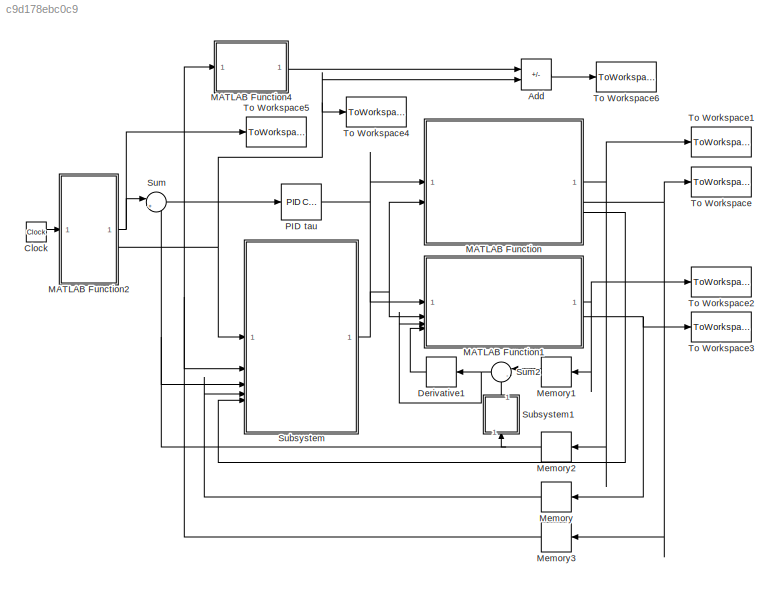
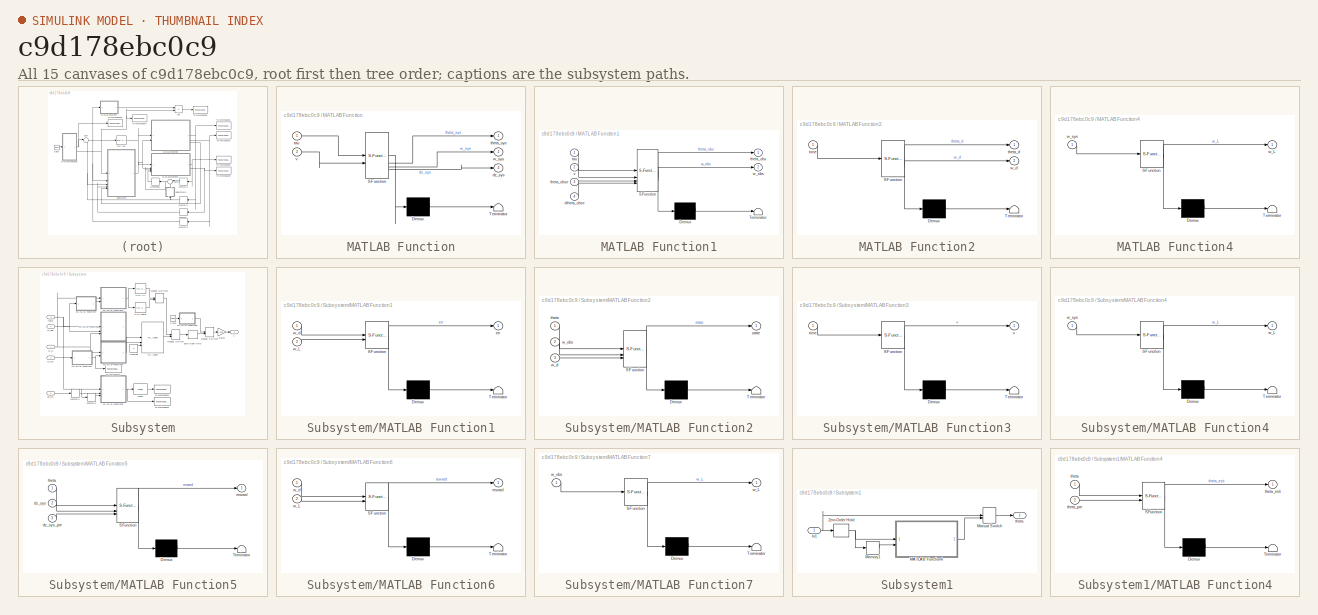
[diagram: thumbnail index - all 15 canvases of the model, root first then tree order]
MODEL slx_c9d178ebc0c9
KIND model
CONFIG AbsTol = auto
CONFIG EnableMultiTasking = off
CONFIG FixedStep = 5e-5
CONFIG MaxStep = auto
CONFIG MinStep = auto
CONFIG RelTol = 1e-3
CONFIG SampleTimeConstraint = Unconstrained
CONFIG SolverName = FixedStepAuto
CONFIG StartTime = 0.0
CONFIG StopTime = 10.0
BLOCK [Sum] Add
  IconShape = rectangular
  Inputs = -+
BLOCK [Clock] Clock
BLOCK [Derivative] Derivative1
  NameLocation = top
BLOCK [SubSystem] MATLAB Function
  ErrorFcn = Stateflow.Translate.translate
  PermitHierarchicalResolution = ExplicitOnly
  SFBlockType = MATLAB Function
  TreatAsAtomicUnit = on
BLOCK [Demux] MATLAB Function/ Demux 
  Outputs = 1
BLOCK [S-Function] MATLAB Function/ SFunction 
  EnableBusSupport = on
  FunctionName = sf_sfun
  PortCounts = [2 4]
  SFcnIsStateOwnerBlock = off
  SFunctionDeploymentMode = off
  Tag = Stateflow S-Function 2
BLOCK [Terminator] MATLAB Function/ Terminator 
BLOCK [Outport] MATLAB Function/dz_sys
  Port = 3
BLOCK [Inport] MATLAB Function/tau
BLOCK [Outport] MATLAB Function/theta_sys
  VectorParamsAs1DForOutWhenUnconnected = off
BLOCK [Inport] MATLAB Function/v
  Port = 2
BLOCK [Outport] MATLAB Function/w_sys
  Port = 2
  VectorParamsAs1DForOutWhenUnconnected = off
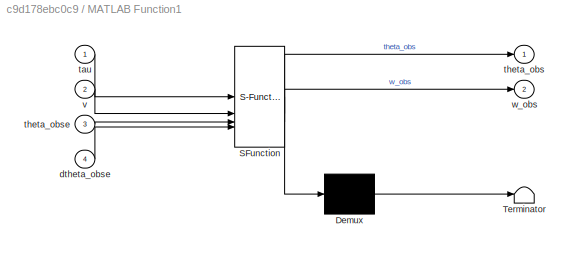
BLOCK [SubSystem] MATLAB Function1
  ErrorFcn = Stateflow.Translate.translate
  PermitHierarchicalResolution = ExplicitOnly
  SFBlockType = MATLAB Function
  TreatAsAtomicUnit = on
BLOCK [Demux] MATLAB Function1/ Demux 
  Outputs = 1
BLOCK [S-Function] MATLAB Function1/ SFunction 
  EnableBusSupport = on
  FunctionName = sf_sfun
  PortCounts = [4 3]
  SFcnIsStateOwnerBlock = off
  SFunctionDeploymentMode = off
  Tag = Stateflow S-Function 1
BLOCK [Terminator] MATLAB Function1/ Terminator 
BLOCK [Inport] MATLAB Function1/dtheta_obse
  Port = 4
BLOCK [Inport] MATLAB Function1/tau
BLOCK [Outport] MATLAB Function1/theta_obs
  VectorParamsAs1DForOutWhenUnconnected = off
BLOCK [Inport] MATLAB Function1/theta_obse
  Port = 3
BLOCK [Inport] MATLAB Function1/v
  Port = 2
BLOCK [Outport] MATLAB Function1/w_obs
  Port = 2
  VectorParamsAs1DForOutWhenUnconnected = off
BLOCK [SubSystem] MATLAB Function2
  ErrorFcn = Stateflow.Translate.translate
  PermitHierarchicalResolution = ExplicitOnly
  SFBlockType = MATLAB Function
  TreatAsAtomicUnit = on
BLOCK [Demux] MATLAB Function2/ Demux 
  Outputs = 1
BLOCK [S-Function] MATLAB Function2/ SFunction 
  EnableBusSupport = on
  FunctionName = sf_sfun
  PortCounts = [1 3]
  SFcnIsStateOwnerBlock = off
  SFunctionDeploymentMode = off
  Tag = Stateflow S-Function 3
BLOCK [Terminator] MATLAB Function2/ Terminator 
BLOCK [Outport] MATLAB Function2/theta_d
  VectorParamsAs1DForOutWhenUnconnected = off
BLOCK [Inport] MATLAB Function2/time
BLOCK [Outport] MATLAB Function2/w_d
  Port = 2
  VectorParamsAs1DForOutWhenUnconnected = off
BLOCK [SubSystem] MATLAB Function4
  ErrorFcn = Stateflow.Translate.translate
  PermitHierarchicalResolution = ExplicitOnly
  SFBlockType = MATLAB Function
  TreatAsAtomicUnit = on
BLOCK [Demux] MATLAB Function4/ Demux 
  Outputs = 1
BLOCK [S-Function] MATLAB Function4/ SFunction 
  EnableBusSupport = on
  FunctionName = sf_sfun
  PortCounts = [1 2]
  SFcnIsStateOwnerBlock = off
  SFunctionDeploymentMode = off
  Tag = Stateflow S-Function 12
BLOCK [Terminator] MATLAB Function4/ Terminator 
BLOCK [Outport] MATLAB Function4/w_L
  VectorParamsAs1DForOutWhenUnconnected = off
BLOCK [Inport] MATLAB Function4/w_sys
BLOCK [Memory] Memory
BLOCK [Memory] Memory1
BLOCK [Memory] Memory2
BLOCK [Memory] Memory3
BLOCK [Reference] PID tau  REF=slpidlib/PID Controller
  SourceBlock = slpidlib/PID Controller
  SourceType = PID 1dof
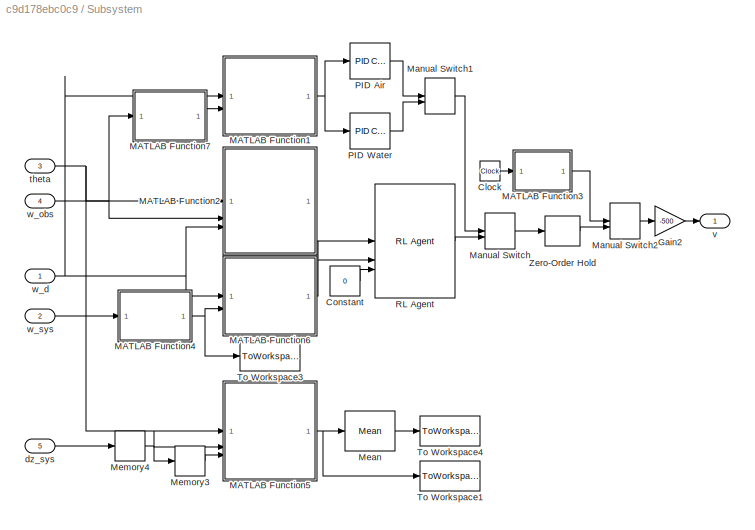
BLOCK [SubSystem] Subsystem
BLOCK [Clock] Subsystem/Clock
BLOCK [Constant] Subsystem/Constant
  Value = 0
BLOCK [Gain] Subsystem/Gain2
  Gain = -500
BLOCK [SubSystem] Subsystem/MATLAB Function1
  ErrorFcn = Stateflow.Translate.translate
  PermitHierarchicalResolution = ExplicitOnly
  SFBlockType = MATLAB Function
  TreatAsAtomicUnit = on
BLOCK [Demux] Subsystem/MATLAB Function1/ Demux 
  Outputs = 1
BLOCK [S-Function] Subsystem/MATLAB Function1/ SFunction 
  EnableBusSupport = on
  FunctionName = sf_sfun
  PortCounts = [2 2]
  SFcnIsStateOwnerBlock = off
  SFunctionDeploymentMode = off
  Tag = Stateflow S-Function 5
BLOCK [Terminator] Subsystem/MATLAB Function1/ Terminator 
BLOCK [Outport] Subsystem/MATLAB Function1/err
  VectorParamsAs1DForOutWhenUnconnected = off
BLOCK [Inport] Subsystem/MATLAB Function1/w_L
  Port = 2
BLOCK [Inport] Subsystem/MATLAB Function1/w_d
BLOCK [SubSystem] Subsystem/MATLAB Function2
  ErrorFcn = Stateflow.Translate.translate
  PermitHierarchicalResolution = ExplicitOnly
  SFBlockType = MATLAB Function
  TreatAsAtomicUnit = on
BLOCK [Demux] Subsystem/MATLAB Function2/ Demux 
  Outputs = 1
BLOCK [S-Function] Subsystem/MATLAB Function2/ SFunction 
  EnableBusSupport = on
  FunctionName = sf_sfun
  PortCounts = [3 2]
  SFcnIsStateOwnerBlock = off
  SFunctionDeploymentMode = off
  Tag = Stateflow S-Function 9
BLOCK [Terminator] Subsystem/MATLAB Function2/ Terminator 
BLOCK [Outport] Subsystem/MATLAB Function2/state
  VectorParamsAs1DForOutWhenUnconnected = off
BLOCK [Inport] Subsystem/MATLAB Function2/theta
BLOCK [Inport] Subsystem/MATLAB Function2/w_d
  Port = 3
BLOCK [Inport] Subsystem/MATLAB Function2/w_obs
  Port = 2
BLOCK [SubSystem] Subsystem/MATLAB Function3
  ErrorFcn = Stateflow.Translate.translate
  PermitHierarchicalResolution = ExplicitOnly
  SFBlockType = MATLAB Function
  TreatAsAtomicUnit = on
BLOCK [Demux] Subsystem/MATLAB Function3/ Demux 
  Outputs = 1
BLOCK [S-Function] Subsystem/MATLAB Function3/ SFunction 
  EnableBusSupport = on
  FunctionName = sf_sfun
  PortCounts = [1 2]
  SFcnIsStateOwnerBlock = off
  SFunctionDeploymentMode = off
  Tag = Stateflow S-Function 4
BLOCK [Terminator] Subsystem/MATLAB Function3/ Terminator 
BLOCK [Inport] Subsystem/MATLAB Function3/time
BLOCK [Outport] Subsystem/MATLAB Function3/v
  VectorParamsAs1DForOutWhenUnconnected = off
BLOCK [SubSystem] Subsystem/MATLAB Function4
  ErrorFcn = Stateflow.Translate.translate
  PermitHierarchicalResolution = ExplicitOnly
  SFBlockType = MATLAB Function
  TreatAsAtomicUnit = on
BLOCK [Demux] Subsystem/MATLAB Function4/ Demux 
  Outputs = 1
BLOCK [S-Function] Subsystem/MATLAB Function4/ SFunction 
  EnableBusSupport = on
  FunctionName = sf_sfun
  PortCounts = [1 2]
  SFcnIsStateOwnerBlock = off
  SFunctionDeploymentMode = off
  Tag = Stateflow S-Function 11
BLOCK [Terminator] Subsystem/MATLAB Function4/ Terminator 
BLOCK [Outport] Subsystem/MATLAB Function4/w_L
  VectorParamsAs1DForOutWhenUnconnected = off
BLOCK [Inport] Subsystem/MATLAB Function4/w_sys
BLOCK [SubSystem] Subsystem/MATLAB Function5
  ErrorFcn = Stateflow.Translate.translate
  PermitHierarchicalResolution = ExplicitOnly
  SFBlockType = MATLAB Function
  TreatAsAtomicUnit = on
BLOCK [Demux] Subsystem/MATLAB Function5/ Demux 
  Outputs = 1
BLOCK [S-Function] Subsystem/MATLAB Function5/ SFunction 
  EnableBusSupport = on
  FunctionName = sf_sfun
  PortCounts = [3 2]
  SFcnIsStateOwnerBlock = off
  SFunctionDeploymentMode = off
  Tag = Stateflow S-Function 6
BLOCK [Terminator] Subsystem/MATLAB Function5/ Terminator 
BLOCK [Inport] Subsystem/MATLAB Function5/dz_sys
  Port = 2
BLOCK [Inport] Subsystem/MATLAB Function5/dz_sys_pre
  Port = 3
BLOCK [Outport] Subsystem/MATLAB Function5/reward
  VectorParamsAs1DForOutWhenUnconnected = off
BLOCK [Inport] Subsystem/MATLAB Function5/theta
BLOCK [SubSystem] Subsystem/MATLAB Function6
  ErrorFcn = Stateflow.Translate.translate
  PermitHierarchicalResolution = ExplicitOnly
  SFBlockType = MATLAB Function
  TreatAsAtomicUnit = on
BLOCK [Demux] Subsystem/MATLAB Function6/ Demux 
  Outputs = 1
BLOCK [S-Function] Subsystem/MATLAB Function6/ SFunction 
  EnableBusSupport = on
  FunctionName = sf_sfun
  PortCounts = [2 2]
  SFcnIsStateOwnerBlock = off
  SFunctionDeploymentMode = off
  Tag = Stateflow S-Function 7
BLOCK [Terminator] Subsystem/MATLAB Function6/ Terminator 
BLOCK [Outport] Subsystem/MATLAB Function6/reward
  VectorParamsAs1DForOutWhenUnconnected = off
BLOCK [Inport] Subsystem/MATLAB Function6/w_L
  Port = 2
BLOCK [Inport] Subsystem/MATLAB Function6/w_d
BLOCK [SubSystem] Subsystem/MATLAB Function7
  ErrorFcn = Stateflow.Translate.translate
  PermitHierarchicalResolution = ExplicitOnly
  SFBlockType = MATLAB Function
  TreatAsAtomicUnit = on
BLOCK [Demux] Subsystem/MATLAB Function7/ Demux 
  Outputs = 1
BLOCK [S-Function] Subsystem/MATLAB Function7/ SFunction 
  EnableBusSupport = on
  FunctionName = sf_sfun
  PortCounts = [1 2]
  SFcnIsStateOwnerBlock = off
  SFunctionDeploymentMode = off
  Tag = Stateflow S-Function 10
BLOCK [Terminator] Subsystem/MATLAB Function7/ Terminator 
BLOCK [Outport] Subsystem/MATLAB Function7/w_L
  VectorParamsAs1DForOutWhenUnconnected = off
BLOCK [Inport] Subsystem/MATLAB Function7/w_obs
BLOCK [ManualSwitch] Subsystem/Manual Switch
  CurrentSetting = 0
BLOCK [ManualSwitch] Subsystem/Manual Switch1
  CurrentSetting = 0
BLOCK [ManualSwitch] Subsystem/Manual Switch2
  CurrentSetting = 0
BLOCK [Reference] Subsystem/Mean  REF=spsMeanLib/Mean
  LibrarySourceBlock = sps_lib/Sensors and Measurements/Mean
  SourceBlock = spsMeanLib/Mean
  SourceType = Mean
BLOCK [Memory] Subsystem/Memory3
  NameLocation = top
BLOCK [Memory] Subsystem/Memory4
  NameLocation = top
BLOCK [Reference] Subsystem/PID Air  REF=slpidlib/PID Controller
  SourceBlock = slpidlib/PID Controller
  SourceType = PID 1dof
BLOCK [Reference] Subsystem/PID Water  REF=slpidlib/PID Controller
  SourceBlock = slpidlib/PID Controller
  SourceType = PID 1dof
BLOCK [Reference] Subsystem/RL Agent  REF=rllib/RL Agent
  SourceBlock = rllib/RL Agent
  SourceType = RL Agent
BLOCK [ToWorkspace] Subsystem/To Workspace1
  FixptAsFi = on
  MaxDataPoints = inf
  SampleTime = -1
  VariableName = thrust
BLOCK [ToWorkspace] Subsystem/To Workspace3
  FixptAsFi = on
  MaxDataPoints = inf
  SampleTime = -1
  VariableName = w_L
BLOCK [ToWorkspace] Subsystem/To Workspace4
  FixptAsFi = on
  MaxDataPoints = inf
  SampleTime = -1
  VariableName = reward
BLOCK [ZeroOrderHold] Subsystem/Zero-Order Hold
  SampleTime = 20e-3
BLOCK [Inport] Subsystem/dz_sys
  Port = 5
BLOCK [Inport] Subsystem/theta
  Port = 3
BLOCK [Outport] Subsystem/v
  VectorParamsAs1DForOutWhenUnconnected = off
BLOCK [Inport] Subsystem/w_d
BLOCK [Inport] Subsystem/w_obs
  Port = 4
BLOCK [Inport] Subsystem/w_sys
  Port = 2
BLOCK [SubSystem] Subsystem1
BLOCK [Inport] Subsystem1/In1
BLOCK [SubSystem] Subsystem1/MATLAB Function4
  ErrorFcn = Stateflow.Translate.translate
  PermitHierarchicalResolution = ExplicitOnly
  SFBlockType = MATLAB Function
  TreatAsAtomicUnit = on
BLOCK [Demux] Subsystem1/MATLAB Function4/ Demux 
  Outputs = 1
BLOCK [S-Function] Subsystem1/MATLAB Function4/ SFunction 
  EnableBusSupport = on
  FunctionName = sf_sfun
  PortCounts = [2 2]
  SFcnIsStateOwnerBlock = off
  SFunctionDeploymentMode = off
  Tag = Stateflow S-Function 8
BLOCK [Terminator] Subsystem1/MATLAB Function4/ Terminator 
BLOCK [Inport] Subsystem1/MATLAB Function4/theta
BLOCK [Outport] Subsystem1/MATLAB Function4/theta_esti
  VectorParamsAs1DForOutWhenUnconnected = off
BLOCK [Inport] Subsystem1/MATLAB Function4/theta_pre
  Port = 2
BLOCK [ManualSwitch] Subsystem1/Manual Switch
BLOCK [Memory] Subsystem1/Memory1
  NameLocation = top
BLOCK [ZeroOrderHold] Subsystem1/Zero-Order Hold
  SampleTime = 30e-3
BLOCK [Outport] Subsystem1/theta
BLOCK [Sum] Sum
  Inputs = |+-
BLOCK [Sum] Sum2
  Inputs = |-+
  NameLocation = top
BLOCK [ToWorkspace] To Workspace
  FixptAsFi = on
  MaxDataPoints = inf
  SampleTime = -1
  VariableName = w_sys
BLOCK [ToWorkspace] To Workspace1
  FixptAsFi = on
  MaxDataPoints = inf
  SampleTime = -1
  VariableName = theta_sys
BLOCK [ToWorkspace] To Workspace2
  FixptAsFi = on
  MaxDataPoints = inf
  SampleTime = -1
  VariableName = theta_obs
BLOCK [ToWorkspace] To Workspace3
  FixptAsFi = on
  MaxDataPoints = inf
  SampleTime = -1
  VariableName = w_obs
BLOCK [ToWorkspace] To Workspace4
  FixptAsFi = on
  MaxDataPoints = inf
  SampleTime = -1
  VariableName = w_d
BLOCK [ToWorkspace] To Workspace5
  FixptAsFi = on
  MaxDataPoints = inf
  SampleTime = -1
  VariableName = theta_d
BLOCK [ToWorkspace] To Workspace6
  FixptAsFi = on
  MaxDataPoints = inf
  SampleTime = -1
  VariableName = w_e
LINE Add:1 -> To Workspace6:1
LINE Clock:1 -> MATLAB Function2:1
LINE Derivative1:1 -> MATLAB Function1:4
NET MATLAB Function1:1 -> Memory1:1, To Workspace2:1
NET MATLAB Function1:2 -> Memory:1, To Workspace3:1
NET MATLAB Function2:1 -> Sum:1, To Workspace5:1
NET MATLAB Function2:2 -> Add:2, Subsystem:1, To Workspace4:1
LINE MATLAB Function4:1 -> Add:1
NET MATLAB Function:1 -> Memory2:1, To Workspace1:1
NET MATLAB Function:2 -> Memory3:1, To Workspace:1
LINE MATLAB Function:3 -> Subsystem:5
LINE Memory1:1 -> Sum2:1
NET Memory2:1 -> Subsystem1:1, Subsystem:3, Sum:2
NET Memory3:1 -> MATLAB Function4:1, Subsystem:2
LINE Memory:1 -> Subsystem:4
NET PID tau:1 -> MATLAB Function1:1, MATLAB Function:1
LINE Subsystem/Clock:1 -> Subsystem/MATLAB Function3:1
LINE Subsystem/Constant:1 -> Subsystem/RL Agent:3
LINE Subsystem/Gain2:1 -> Subsystem/v:1
NET Subsystem/MATLAB Function1:1 -> Subsystem/PID Air:1, Subsystem/PID Water:1
LINE Subsystem/MATLAB Function2:1 -> Subsystem/RL Agent:1
LINE Subsystem/MATLAB Function3:1 -> Subsystem/Manual Switch2:1
NET Subsystem/MATLAB Function4:1 -> Subsystem/MATLAB Function6:2, Subsystem/To Workspace3:1
NET Subsystem/MATLAB Function5:1 -> Subsystem/Mean:1, Subsystem/To Workspace1:1
LINE Subsystem/MATLAB Function6:1 -> Subsystem/RL Agent:2
LINE Subsystem/MATLAB Function7:1 -> Subsystem/MATLAB Function1:2
LINE Subsystem/Manual Switch1:1 -> Subsystem/Manual Switch:1
LINE Subsystem/Manual Switch2:1 -> Subsystem/Gain2:1
LINE Subsystem/Manual Switch:1 -> Subsystem/Zero-Order Hold:1
LINE Subsystem/Mean:1 -> Subsystem/To Workspace4:1
LINE Subsystem/Memory3:1 -> Subsystem/MATLAB Function5:3
NET Subsystem/Memory4:1 -> Subsystem/MATLAB Function5:2, Subsystem/Memory3:1
LINE Subsystem/PID Air:1 -> Subsystem/Manual Switch1:1
LINE Subsystem/PID Water:1 -> Subsystem/Manual Switch1:2
LINE Subsystem/RL Agent:1 -> Subsystem/Manual Switch:2
LINE Subsystem/Zero-Order Hold:1 -> Subsystem/Manual Switch2:2
LINE Subsystem/dz_sys:1 -> Subsystem/Memory4:1
NET Subsystem/theta:1 -> Subsystem/MATLAB Function2:1, Subsystem/MATLAB Function5:1
NET Subsystem/w_d:1 -> Subsystem/MATLAB Function1:1, Subsystem/MATLAB Function2:3, Subsystem/MATLAB Function6:1
NET Subsystem/w_obs:1 -> Subsystem/MATLAB Function2:2, Subsystem/MATLAB Function7:1
LINE Subsystem/w_sys:1 -> Subsystem/MATLAB Function4:1
NET Subsystem1/In1:1 -> Subsystem1/Manual Switch:1, Subsystem1/Zero-Order Hold:1
LINE Subsystem1/MATLAB Function4:1 -> Subsystem1/Manual Switch:2
LINE Subsystem1/Manual Switch:1 -> Subsystem1/theta:1
LINE Subsystem1/Memory1:1 -> Subsystem1/MATLAB Function4:2
NET Subsystem1/Zero-Order Hold:1 -> Subsystem1/MATLAB Function4:1, Subsystem1/Memory1:1
LINE Subsystem1:1 -> Sum2:2
NET Subsystem:1 -> MATLAB Function1:2, MATLAB Function:2
NET Sum2:1 -> Derivative1:1, MATLAB Function1:3
LINE Sum:1 -> PID tau:1
note: NET lines group one-source signal fan-out (src -> all destinations, sorted); 1:1 wires keep LINE
CHART Subsystem/MATLAB Function7 states=1 transitions=1
  STATE_LABEL 'eML_blk_kernel()'
  STATE_LABEL 'SCRIPT:\nfunction w_L = get_w_L(w_obs)\n    w_L = w_obs(end);\nend'
CHART Subsystem/MATLAB Function4 states=1 transitions=1
  STATE_LABEL 'eML_blk_kernel()'
  STATE_LABEL 'SCRIPT:\nfunction w_L = get_w_L(w_sys)\n    w_L = w_sys(end);\nend'
CHART MATLAB Function4 states=1 transitions=1
  STATE_LABEL 'eML_blk_kernel()'
  STATE_LABEL 'SCRIPT:\nfunction w_L = get_w_L(w_sys)\n    w_L = w_sys(end);\nend'
CHART MATLAB Function1 states=1 transitions=1
  STATE_LABEL 'eML_blk_kernel()'
  STATE_LABEL 'SCRIPT:\nfunction [theta_obs, w_obs] = Flex_Fishtail_Obs(tau, v, theta_obse, dtheta_obse)\n    %***********************************************************\n    persistent angle_obs;\n    persistent angle_obs_pre;\n    persistent omega_obs;\n    persistent omega_obs_pre;\n    \n    if isempty(angle_obs)\n        angle_obs = 10/180*pi;\n        angle_obs_pre = angle_obs;\n        omega_obs = [ 0; 0; 0; 0; 0; ...<+3071ch>'
CHART MATLAB Function states=1 transitions=1
  STATE_LABEL 'eML_blk_kernel()'
  STATE_LABEL 'SCRIPT:\nfunction [theta_sys, w_sys, dz_sys] = Flex_Fishtail(tau, v)\n    %***********************************************************\n    persistent angle;\n    persistent angle_pre;\n    persistent omega;\n    persistent omega_pre;\n    \n    if isempty(angle)\n%         angle = (2 * rand() - 1)*5/180*pi;\n        angle = 10/180*pi;\n        angle_pre = angle;\n%         omega = [ 0; 0; -0.0002; -0.0004;\n%...<+3108ch>'
CHART MATLAB Function2 states=1 transitions=1
  STATE_LABEL 'eML_blk_kernel()'
  STATE_LABEL 'SCRIPT:\nfunction [theta_d, w_d] = CTL_target(time)\n    c1=10/180*pi;\n    c2=0.01;\n    L=0.17;\n    lamda=L*50;\n\n    amp = 0.004;\n    phase = 0;\n\n    if time < 8\n        f = 0.5;\n    else\n        f = 1.0;\n    end\n    \n    theta_d=c1*sin(2*pi*f*time);\n%     theta_d=c1;\n%     theta_d = 0;\n    w_d=(c1*L+c2*L^2)*sin(2*pi*(f*time+L/lamda))-L*theta_d;\n%     w_d=amp*sin(2*pi*(f*time+phase/360));\n%     w_d=...<+8ch>'
CHART Subsystem/MATLAB Function3 states=1 transitions=1
  STATE_LABEL 'eML_blk_kernel()'
  STATE_LABEL 'SCRIPT:\nfunction v  = CTL_target(time)\n\n%     if time<10\n%         f = 0.5;\n%     elseif time>=10 && time<15\n%         f = 1.0;\n%     else\n%         f = 1.5;\n%     end\n\n    f = 1;\n    \n    v=sin(2*pi*f*time);\n\nend\n'
CHART Subsystem/MATLAB Function1 states=1 transitions=1
  STATE_LABEL 'eML_blk_kernel()'
  STATE_LABEL 'SCRIPT:\nfunction err = Get_Error(w_d, w_L)\n\n    err = w_d - w_L;\n    ke = 1e5;\n\n    err = ke * err;\n\nend'
CHART Subsystem/MATLAB Function5 states=1 transitions=1
  STATE_LABEL 'eML_blk_kernel()'
  STATE_LABEL 'SCRIPT:\nfunction reward = Get_Reward(theta, dz_sys, dz_sys_pre)\n    dt = 5e-5;\n\n    rhow=1000;\n    Caf=0.05;\n    Cdf=1.2;\n\n    L=0.17;\n    nx=19;\n    dx=L/(nx-1);\n    bx1=round(0.03/dx)+1;\n    bx2=round(0.14/dx)+1;\n\n    b=zeros(nx,1);\n    rho_w=zeros(nx,1);\n    cw=zeros(nx,1);\n    \n    for i=1:nx\n        if i<bx1\n            b(i)=0.04;\n        elseif i>bx2\n            b(i)=2.3*(i-bx2)*dx+0.026;\n  ...<+449ch>'
CHART Subsystem/MATLAB Function6 states=1 transitions=1
  STATE_LABEL 'eML_blk_kernel()'
  STATE_LABEL 'SCRIPT:\nfunction reward = Get_Reward(w_d, w_L)\n\n    err = w_d - w_L;\n    ke = 1e4;\n\n    reward = -ke*err*err;\n\nend'
CHART Subsystem1/MATLAB Function4 states=1 transitions=1
  STATE_LABEL 'eML_blk_kernel()'
  STATE_LABEL 'SCRIPT:\nfunction theta_esti = theta_estimation(theta,theta_pre)\n    persistent theta_esti_preval;\n    persistent theta_esti_val;\n    persistent obs_cal_count;\n    persistent obs_record;\n\n    if isempty(obs_cal_count)\n        theta_esti_preval = 0;\n        theta_esti_val = 0;\n        obs_cal_count = 0;\n        obs_record = 0;\n    end\n\n    dt_obs = 5e-5;    \n    dt_fb = 30e-3;\n    obs_cal_count = ob...<+442ch>'
CHART Subsystem/MATLAB Function2 states=1 transitions=1
  STATE_LABEL 'eML_blk_kernel()'
  STATE_LABEL 'SCRIPT:\nfunction state = Get_State(theta, w_obs, w_d)\n\n    state = [theta;\n             w_obs(9);\n             w_obs(14);\n             w_obs(end);\n             w_d];\n\nend'
CHART  states=0 transitions=0
CHART  states=0 transitions=0
CHART  states=0 transitions=0
CHART  states=0 transitions=0
CHART  states=0 transitions=0
CHART  states=0 transitions=0
CHART  states=0 transitions=0
CHART  states=0 transitions=0
CHART  states=0 transitions=0
CHART  states=0 transitions=0
CHART  states=0 transitions=0
CHART  states=0 transitions=0
